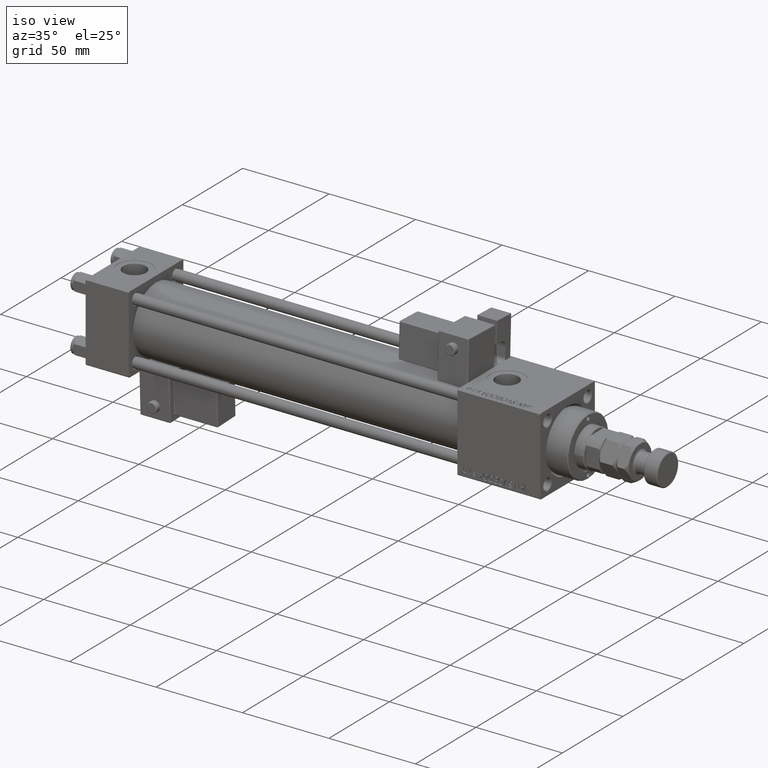
[diagram: clean part render]
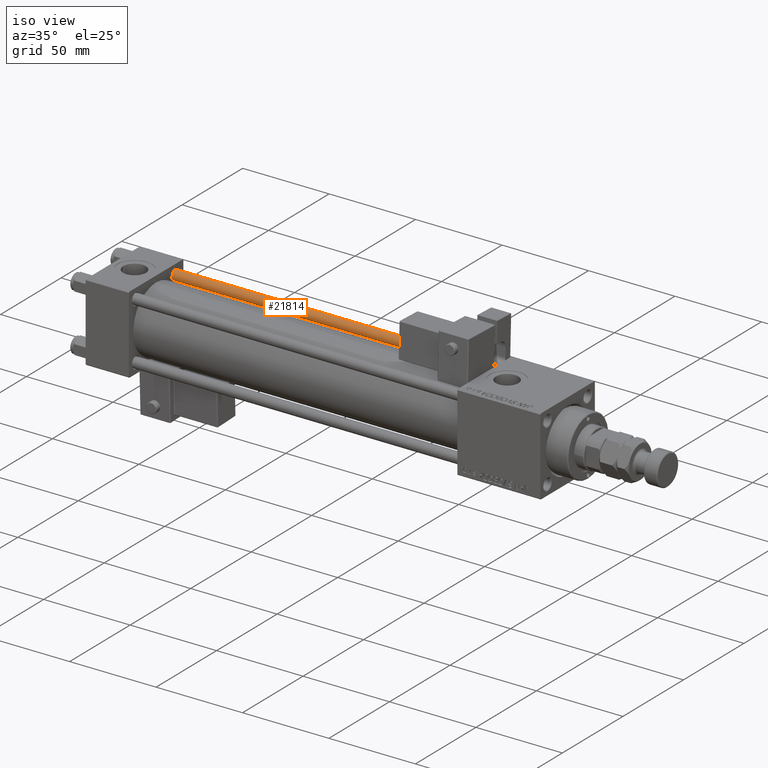
[diagram: same view with one face highlighted and labeled with its STEP entity id]
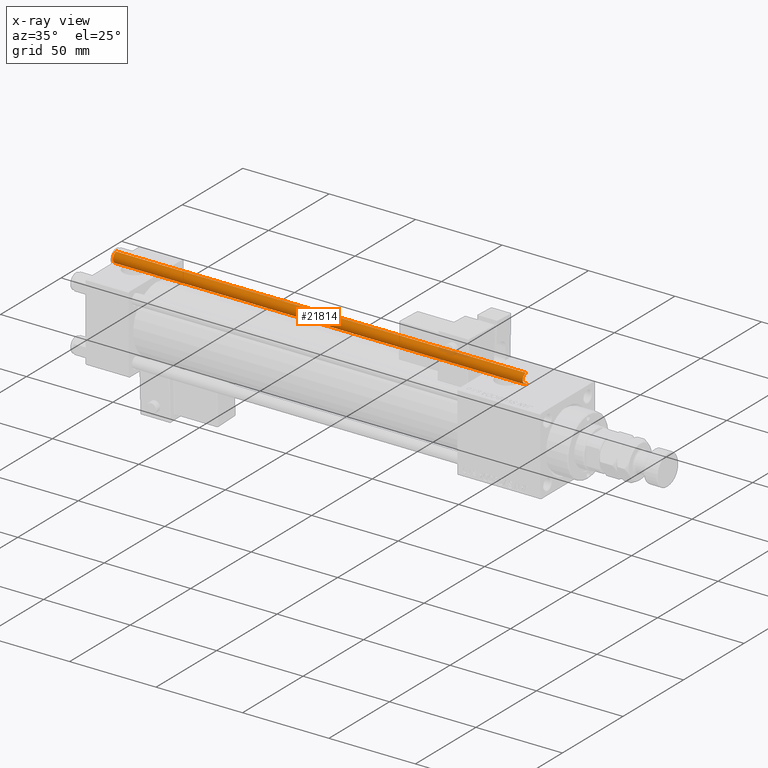
[diagram: x-ray of the same camera — body ghosted, the highlighted face saturated]
A machine part, iso view. The second image highlights one B-rep face of the part: STEP entity #21814.
The next image is the same camera in x-ray: the body ghosted, the highlighted face saturated — about 2% of this face is hidden behind the body in this view.
In plain terms, the highlighted cylindrical surface (edge-blend (fillet) strip) has radius 3 mm, axis along (-1, 0, 0).
Its self-contained STEP definition (entity closure, byte-faithful):
#609 = CIRCLE ( 'NONE', #5744, 3.000000000000000444 ) ;
#2961 = AXIS2_PLACEMENT_3D ( 'NONE', #11247, #19753, #32895 ) ;
#4555 = CARTESIAN_POINT ( 'NONE',  ( -3.000000000000000444, 0.000000000000000000, 237.5000000000000284 ) ) ;
#5744 = AXIS2_PLACEMENT_3D ( 'NONE', #10768, #22289, #43401 ) ;
#9063 = CIRCLE ( 'NONE', #2961, 3.000000000000000444 ) ;
#9079 = ORIENTED_EDGE ( 'NONE', *, *, #54136, .T. ) ;
#10768 = CARTESIAN_POINT ( 'NONE',  ( 0.000000000000000000, 0.000000000000000000, 237.5000000000000284 ) ) ;
#11247 = CARTESIAN_POINT ( 'NONE',  ( 0.000000000000000000, 0.000000000000000000, 0.5000000000000281997 ) ) ;
#12084 = AXIS2_PLACEMENT_3D ( 'NONE', #45544, #16749, #33467 ) ;
#14779 = VECTOR ( 'NONE', #15743, 1000.000000000000000 ) ;
#15743 = DIRECTION ( 'NONE',  ( -0.000000000000000000, -0.000000000000000000, -1.000000000000000000 ) ) ;
#16749 = DIRECTION ( 'NONE',  ( -0.000000000000000000, -0.000000000000000000, -1.000000000000000000 ) ) ;
#17298 = FACE_OUTER_BOUND ( 'NONE', #20824, .T. ) ;
#17307 = EDGE_CURVE ( 'NONE', #41893, #49796, #609, .T. ) ;
#18050 = LINE ( 'NONE', #34764, #33439 ) ;
#18735 = ORIENTED_EDGE ( 'NONE', *, *, #23291, .F. ) ;
#19753 = DIRECTION ( 'NONE',  ( -0.000000000000000000, -0.000000000000000000, 1.000000000000000000 ) ) ;
#20824 = EDGE_LOOP ( 'NONE', ( #18735, #51868, #9079, #30160 ) ) ;
#21814 = ADVANCED_FACE ( 'NONE', ( #17298 ), #28831, .T. ) ;
#22289 = DIRECTION ( 'NONE',  ( 0.000000000000000000, 0.000000000000000000, -1.000000000000000000 ) ) ;
#23291 = EDGE_CURVE ( 'NONE', #41893, #52924, #48926, .T. ) ;
#27997 = CARTESIAN_POINT ( 'NONE',  ( -3.000000000000000444, 0.000000000000000000, 0.5000000000000281997 ) ) ;
#28831 = CYLINDRICAL_SURFACE ( 'NONE', #12084, 3.000000000000000444 ) ;
#30160 = ORIENTED_EDGE ( 'NONE', *, *, #38520, .T. ) ;
#32455 = CARTESIAN_POINT ( 'NONE',  ( 3.000000000000000444, 3.673940397442060361E-16, 238.0000000000000000 ) ) ;
#32758 = CARTESIAN_POINT ( 'NONE',  ( 3.000000000000000444, 3.673940397442060361E-16, 237.5000000000000284 ) ) ;
#32895 = DIRECTION ( 'NONE',  ( 1.000000000000000000, 0.000000000000000000, 0.000000000000000000 ) ) ;
#33439 = VECTOR ( 'NONE', #50970, 1000.000000000000000 ) ;
#33467 = DIRECTION ( 'NONE',  ( -1.000000000000000000, 0.000000000000000000, 0.000000000000000000 ) ) ;
#34764 = CARTESIAN_POINT ( 'NONE',  ( -3.000000000000000444, 0.000000000000000000, 238.0000000000000000 ) ) ;
#35552 = CARTESIAN_POINT ( 'NONE',  ( 3.000000000000000444, 3.673940397442060361E-16, 0.5000000000000281997 ) ) ;
#37064 = VERTEX_POINT ( 'NONE', #27997 ) ;
#38520 = EDGE_CURVE ( 'NONE', #37064, #52924, #9063, .T. ) ;
#41893 = VERTEX_POINT ( 'NONE', #32758 ) ;
#43401 = DIRECTION ( 'NONE',  ( 1.000000000000000000, 0.000000000000000000, 0.000000000000000000 ) ) ;
#45544 = CARTESIAN_POINT ( 'NONE',  ( 0.000000000000000000, 0.000000000000000000, 238.0000000000000000 ) ) ;
#48926 = LINE ( 'NONE', #32455, #14779 ) ;
#49796 = VERTEX_POINT ( 'NONE', #4555 ) ;
#50970 = DIRECTION ( 'NONE',  ( -0.000000000000000000, -0.000000000000000000, -1.000000000000000000 ) ) ;
#51868 = ORIENTED_EDGE ( 'NONE', *, *, #17307, .T. ) ;
#52924 = VERTEX_POINT ( 'NONE', #35552 ) ;
#54136 = EDGE_CURVE ( 'NONE', #49796, #37064, #18050, .T. ) ;